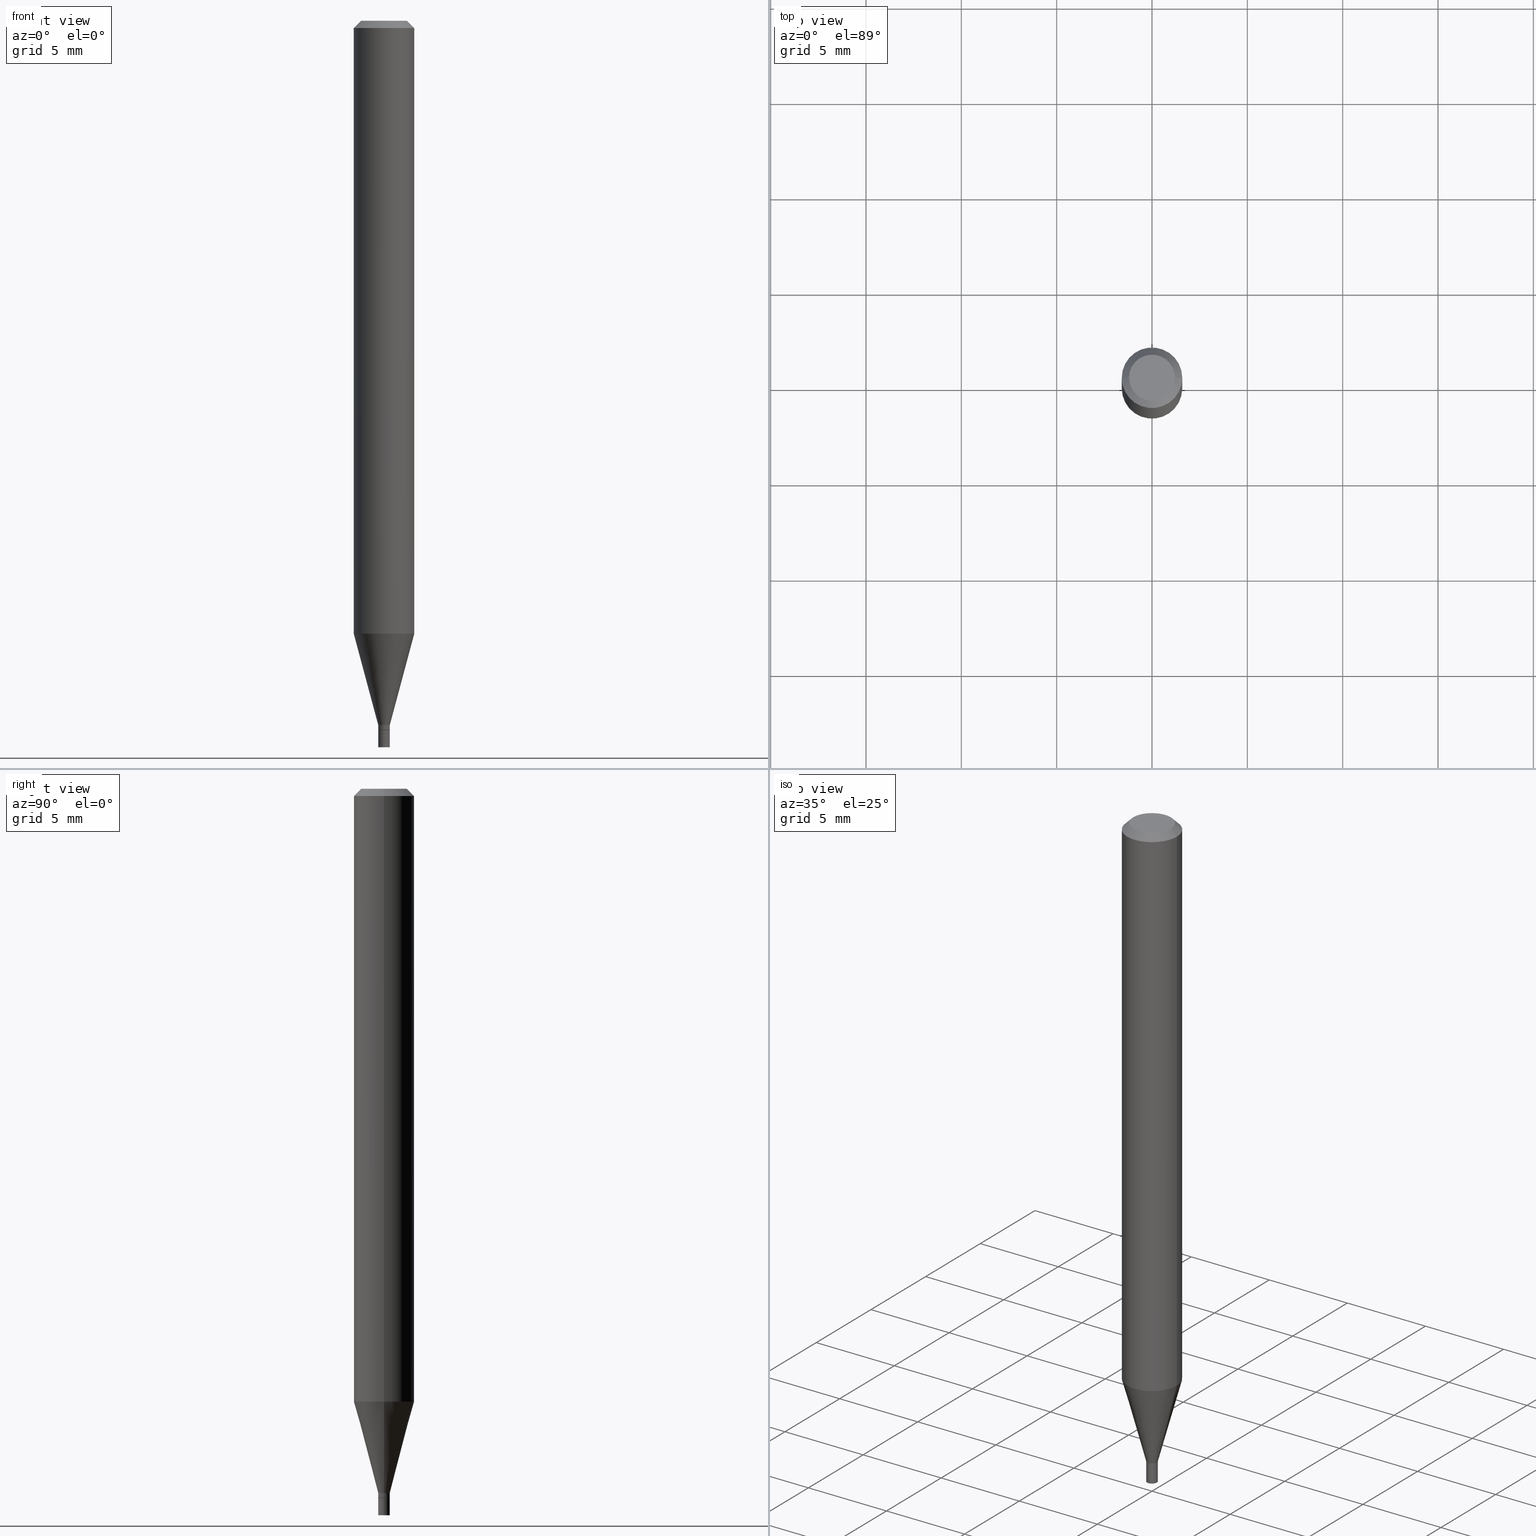
[diagram: canonical four-view strip — front | top / right | iso, engineering-drawing reading convention]
A machine part, canonical four-view strip (front | top / right | iso — engineering-drawing reading convention). The complete STEP part file that produces these views, byte-faithful:
ISO-10303-21;
HEADER;
FILE_DESCRIPTION (( 'STEP AP203' ),
    '1' );
FILE_NAME ('02257.STEP',
    '2024-03-18T19:57:47',
    ( '' ),
    ( '' ),
    'SwSTEP 2.0',
    'SolidWorks 2023',
    '' );
FILE_SCHEMA (( 'CONFIG_CONTROL_DESIGN' ));
ENDSEC;

DATA;
#1 = EDGE_CURVE ( 'NONE', #307, #278, #97, .T. ) ;
#2 = CALENDAR_DATE ( 2024, 18, 3 ) ;
#3 = VERTEX_POINT ( 'NONE', #265 ) ;
#4 = CARTESIAN_POINT ( 'NONE',  ( -0.01199999999999992219, -4.482919457413706092E-15, -1.454000000000000181 ) ) ;
#5 = APPROVAL_DATE_TIME ( #335, #262 ) ;
#6 = ORIENTED_EDGE ( 'NONE', *, *, #279, .F. ) ;
#7 = CARTESIAN_POINT ( 'NONE',  ( 2.080290297812910479E-44, -2.970103211220577886E-30, -8.506713692488703374E-16 ) ) ;
#8 = DIRECTION ( 'NONE',  ( -2.445468806185136597E-29, 3.491481338843145583E-15, 1.000000000000000000 ) ) ;
#9 = AXIS2_PLACEMENT_3D ( 'NONE', #126, #102, #194 ) ;
#10 = AXIS2_PLACEMENT_3D ( 'NONE', #439, #182, #48 ) ;
#11 = ORIENTED_EDGE ( 'NONE', *, *, #47, .T. ) ;
#12 = LOCAL_TIME ( 15, 57, 47.00000000000000000, #213 ) ;
#13 = COORDINATED_UNIVERSAL_TIME_OFFSET ( 5, 0, .BEHIND. ) ;
#14 = DATE_AND_TIME ( #257, #99 ) ;
#15 = ORIENTED_EDGE ( 'NONE', *, *, #47, .F. ) ;
#16 = VERTEX_POINT ( 'NONE', #283 ) ;
#17 = DIRECTION ( 'NONE',  ( -2.445468806185136597E-29, 3.491481338843145583E-15, 1.000000000000000000 ) ) ;
#18 = ORIENTED_EDGE ( 'NONE', *, *, #165, .T. ) ;
#19 = DIRECTION ( 'NONE',  ( 1.000000000000000000, -6.982962677686266711E-15, 4.876176775795936353E-29 ) ) ;
#20 = CIRCLE ( 'NONE', #466, 0.04749999999999999362 ) ;
#21 = CIRCLE ( 'NONE', #366, 0.06250000000000000000 ) ;
#22 = CC_DESIGN_PERSON_AND_ORGANIZATION_ASSIGNMENT ( #76, #327, ( #134 ) ) ;
#23 = DIRECTION ( 'NONE',  ( 1.000000000000000000, -6.982962677686267499E-15, 4.852736867747366768E-29 ) ) ;
#24 = CARTESIAN_POINT ( 'NONE',  ( 0.01200000000000000025, -8.379555213223520348E-17, 5.851412130955122461E-31 ) ) ;
#25 = DIRECTION ( 'NONE',  ( -2.445468806185136597E-29, 3.491481338843145583E-15, 1.000000000000000000 ) ) ;
#26 = ORIENTED_EDGE ( 'NONE', *, *, #402, .F. ) ;
#27 = ORIENTED_EDGE ( 'NONE', *, *, #114, .T. ) ;
#28 = DIRECTION ( 'NONE',  ( -2.445468806185136597E-29, 3.491481338843145583E-15, 1.000000000000000000 ) ) ;
#29 = EDGE_LOOP ( 'NONE', ( #343, #449, #161, #405 ) ) ;
#30 = APPROVAL ( #462, 'UNSPECIFIED' ) ;
#31 = FACE_OUTER_BOUND ( 'NONE', #277, .T. ) ;
#32 = AXIS2_PLACEMENT_3D ( 'NONE', #66, #204, #117 ) ;
#33 = CARTESIAN_POINT ( 'NONE',  ( 3.580166332255040005E-29, -5.111528680066365187E-15, -1.463999999999999968 ) ) ;
#34 = CIRCLE ( 'NONE', #64, 0.01149999999999999981 ) ;
#35 = ADVANCED_FACE ( 'NONE', ( #424 ), #243, .T. ) ;
#36 = LOCAL_TIME ( 15, 57, 47.00000000000000000, #254 ) ;
#37 = LINE ( 'NONE', #426, #168 ) ;
#38 = PERSON_AND_ORGANIZATION ( #308, #251 ) ;
#39 = CYLINDRICAL_SURFACE ( 'NONE', #322, 0.01200000000000000025 ) ;
#40 = CIRCLE ( 'NONE', #123, 0.01199999999999992219 ) ;
#41 = ADVANCED_FACE ( 'NONE', ( #31 ), #389, .T. ) ;
#42 = CALENDAR_DATE ( 2024, 18, 3 ) ;
#43 = DIRECTION ( 'NONE',  ( 0.7071067811865642261, -2.468850131082431399E-15, 0.7071067811865309194 ) ) ;
#44 = CARTESIAN_POINT ( 'NONE',  ( -0.01149999999999999981, -5.027167038279843575E-15, -1.463999999999999968 ) ) ;
#45 = ORIENTED_EDGE ( 'NONE', *, *, #1, .F. ) ;
#46 = ORIENTED_EDGE ( 'NONE', *, *, #371, .T. ) ;
#47 = EDGE_CURVE ( 'NONE', #278, #307, #174, .T. ) ;
#48 = DIRECTION ( 'NONE',  ( 1.000000000000000000, -6.982962677686296687E-15, 0.000000000000000000 ) ) ;
#49 = AXIS2_PLACEMENT_3D ( 'NONE', #225, #337, #157 ) ;
#50 = AXIS2_PLACEMENT_3D ( 'NONE', #345, #460, #143 ) ;
#51 = APPROVAL_PERSON_ORGANIZATION ( #398, #262, #217 ) ;
#52 = CARTESIAN_POINT ( 'NONE',  ( -0.01200000000000000025, 8.526512829121202408E-17, -5.902722108305887001E-31 ) ) ;
#53 = EDGE_LOOP ( 'NONE', ( #11, #339, #192, #160 ) ) ;
#54 = ORIENTED_EDGE ( 'NONE', *, *, #81, .F. ) ;
#55 = FACE_OUTER_BOUND ( 'NONE', #341, .T. ) ;
#56 = EDGE_LOOP ( 'NONE', ( #190, #183, #197, #59 ) ) ;
#57 = DIRECTION ( 'NONE',  ( -0.2588190451025211281, 5.211531920934547886E-15, 0.9659258262890679791 ) ) ;
#58 = CIRCLE ( 'NONE', #459, 0.04749999999999999362 ) ;
#59 = ORIENTED_EDGE ( 'NONE', *, *, #165, .F. ) ;
#60 = LINE ( 'NONE', #304, #431 ) ;
#61 = VERTEX_POINT ( 'NONE', #112 ) ;
#62 = ADVANCED_FACE ( 'NONE', ( #397 ), #73, .F. ) ;
#63 = CIRCLE ( 'NONE', #9, 0.01199999999999992219 ) ;
#64 = AXIS2_PLACEMENT_3D ( 'NONE', #33, #171, #314 ) ;
#65 = LENGTH_MEASURE_WITH_UNIT ( LENGTH_MEASURE( 0.02539999999999999897 ), #141 );
#66 = CARTESIAN_POINT ( 'NONE',  ( 3.576687321579069994E-29, -5.368277968210015545E-15, -1.500000000000000222 ) ) ;
#67 = CARTESIAN_POINT ( 'NONE',  ( 3.580166332255040005E-29, -5.111528680066365187E-15, -1.463999999999999968 ) ) ;
#68 = ADVANCED_FACE ( 'NONE', ( #162 ), #348, .F. ) ;
#69 = DIRECTION ( 'NONE',  ( 1.000000000000000000, -6.982962677686296687E-15, 0.000000000000000000 ) ) ;
#70 = LINE ( 'NONE', #391, #294 ) ;
#71 = VECTOR ( 'NONE', #191, 39.37007874015748143 ) ;
#72 = DIRECTION ( 'NONE',  ( 1.000000000000000000, -6.982962677686266711E-15, 4.876176775795935232E-29 ) ) ;
#73 = PLANE ( 'NONE',  #350 ) ;
#74 = PERSON_AND_ORGANIZATION ( #308, #251 ) ;
#75 = EDGE_CURVE ( 'NONE', #16, #3, #363, .T. ) ;
#76 = PERSON_AND_ORGANIZATION ( #308, #251 ) ;
#77 = AXIS2_PLACEMENT_3D ( 'NONE', #288, #113, #313 ) ;
#78 = ORIENTED_EDGE ( 'NONE', *, *, #150, .F. ) ;
#79 = DIRECTION ( 'NONE',  ( 2.438088387897960049E-29, -3.491481338843145188E-15, -1.000000000000000000 ) ) ;
#80 = PERSON_AND_ORGANIZATION_ROLE ( 'creator' ) ;
#81 = EDGE_CURVE ( 'NONE', #372, #186, #20, .T. ) ;
#82 = CARTESIAN_POINT ( 'NONE',  ( 0.000000000000000000, 0.000000000000000000, 0.000000000000000000 ) ) ;
#83 = CARTESIAN_POINT ( 'NONE',  ( 0.01199999999999992219, -5.160409418810168864E-15, -1.454000000000000181 ) ) ;
#84 = ORIENTED_EDGE ( 'NONE', *, *, #198, .F. ) ;
#85 = CIRCLE ( 'NONE', #159, 0.06250000000000000000 ) ;
#86 = ORIENTED_EDGE ( 'NONE', *, *, #386, .T. ) ;
#87 = EDGE_LOOP ( 'NONE', ( #121, #275, #26, #269 ) ) ;
#88 = FACE_OUTER_BOUND ( 'NONE', #259, .T. ) ;
#89 = ORIENTED_EDGE ( 'NONE', *, *, #248, .F. ) ;
#90 = EDGE_CURVE ( 'NONE', #94, #167, #63, .T. ) ;
#91 = FACE_OUTER_BOUND ( 'NONE', #421, .T. ) ;
#92 = VERTEX_POINT ( 'NONE', #44 ) ;
#93 = APPLICATION_CONTEXT ( 'configuration controlled 3d designs of mechanical parts and assemblies' ) ;
#94 = VERTEX_POINT ( 'NONE', #4 ) ;
#95 = ORIENTED_EDGE ( 'NONE', *, *, #177, .T. ) ;
#96 = CARTESIAN_POINT ( 'NONE',  ( -0.01199999999999992219, -4.991348738386722228E-15, -1.454000000000000181 ) ) ;
#97 = CIRCLE ( 'NONE', #49, 0.01200000000000000025 ) ;
#98 = VECTOR ( 'NONE', #316, 39.37007874015748143 ) ;
#99 = LOCAL_TIME ( 15, 57, 47.00000000000000000, #297 ) ;
#100 = FACE_OUTER_BOUND ( 'NONE', #87, .T. ) ;
#101 = VERTEX_POINT ( 'NONE', #210 ) ;
#102 = DIRECTION ( 'NONE',  ( -2.445468806185136597E-29, 3.491481338843145583E-15, 1.000000000000000000 ) ) ;
#103 = CARTESIAN_POINT ( 'NONE',  ( 2.080290297812910479E-44, -2.970103211220577886E-30, -8.506713692488703374E-16 ) ) ;
#104 = ORIENTED_EDGE ( 'NONE', *, *, #296, .F. ) ;
#105 = DIRECTION ( 'NONE',  ( 1.000000000000000000, -6.982962677686291165E-15, 0.000000000000000000 ) ) ;
#106 = AXIS2_PLACEMENT_3D ( 'NONE', #388, #429, #207 ) ;
#107 = DIRECTION ( 'NONE',  ( 1.000000000000000000, -6.982962677686266711E-15, 4.876176775795936353E-29 ) ) ;
#108 = EDGE_CURVE ( 'NONE', #92, #61, #321, .T. ) ;
#109 = DIRECTION ( 'NONE',  ( -2.445468806185136877E-29, 3.491481338843145188E-15, 1.000000000000000000 ) ) ;
#110 = DATE_AND_TIME ( #282, #12 ) ;
#111 = CONICAL_SURFACE ( 'NONE', #140, 0.01199999999999992219, 0.2617993877991498519 ) ;
#112 = CARTESIAN_POINT ( 'NONE',  ( 0.01149999999999999981, -5.191832750859757506E-15, -1.463999999999999968 ) ) ;
#113 = DIRECTION ( 'NONE',  ( -2.445468806185136597E-29, 3.491481338843145583E-15, 1.000000000000000000 ) ) ;
#114 = EDGE_CURVE ( 'NONE', #167, #231, #359, .T. ) ;
#115 = APPROVAL_ROLE ( '' ) ;
#116 = CLOSED_SHELL ( 'NONE', ( #35, #205, #226, #379, #284, #146, #244, #356, #128, #396, #461, #292 ) ) ;
#117 = DIRECTION ( 'NONE',  ( 1.000000000000000000, -6.982962677686265922E-15, 4.876176775795935793E-29 ) ) ;
#118 = AXIS2_PLACEMENT_3D ( 'NONE', #416, #373, #199 ) ;
#119 = CC_DESIGN_PERSON_AND_ORGANIZATION_ASSIGNMENT ( #354, #222, ( #427 ) ) ;
#120 = APPROVAL_DATE_TIME ( #332, #414 ) ;
#121 = ORIENTED_EDGE ( 'NONE', *, *, #417, .T. ) ;
#122 = DESIGN_CONTEXT ( 'detailed design', #93, 'design' ) ;
#123 = AXIS2_PLACEMENT_3D ( 'NONE', #406, #230, #69 ) ;
#124 = VECTOR ( 'NONE', #334, 39.37007874015748143 ) ;
#125 = CC_DESIGN_SECURITY_CLASSIFICATION ( #134, ( #403 ) ) ;
#126 = CARTESIAN_POINT ( 'NONE',  ( 3.555711644193189020E-29, -5.076613866677933538E-15, -1.454000000000000181 ) ) ;
#127 = DIRECTION ( 'NONE',  ( -0.7071067811865676678, 2.468850131082468081E-15, -0.7071067811865273667 ) ) ;
#128 = ADVANCED_FACE ( 'NONE', ( #401 ), #326, .F. ) ;
#129 = LINE ( 'NONE', #24, #413 ) ;
#130 = LINE ( 'NONE', #96, #281 ) ;
#131 = MANIFOLD_SOLID_BREP ( 'Body-Move/Copy2[1]', #158 ) ;
#132 = EDGE_LOOP ( 'NONE', ( #15, #45 ) ) ;
#133 = EDGE_CURVE ( 'NONE', #61, #445, #37, .T. ) ;
#134 = SECURITY_CLASSIFICATION ( '', '', #179 ) ;
#135 = CARTESIAN_POINT ( 'NONE',  ( 3.580166332255040005E-29, -5.111528680066365187E-15, -1.463999999999999968 ) ) ;
#136 = LINE ( 'NONE', #246, #219 ) ;
#137 = DIRECTION ( 'NONE',  ( 1.000000000000000000, -6.982962677686265922E-15, 4.876176775795935793E-29 ) ) ;
#138 = DIRECTION ( 'NONE',  ( -0.7071067811865642261, 7.493145998870414114E-15, 0.7071067811865309194 ) ) ;
#139 = EDGE_CURVE ( 'NONE', #278, #200, #129, .T. ) ;
#140 = AXIS2_PLACEMENT_3D ( 'NONE', #195, #25, #448 ) ;
#141 =( LENGTH_UNIT ( ) NAMED_UNIT ( * ) SI_UNIT ( $, .METRE. ) );
#142 =( CONVERSION_BASED_UNIT ( 'INCH', #65 ) LENGTH_UNIT ( ) NAMED_UNIT ( #286 ) );
#143 = DIRECTION ( 'NONE',  ( -1.000000000000000000, 6.982962677686266711E-15, 0.000000000000000000 ) ) ;
#144 = UNCERTAINTY_MEASURE_WITH_UNIT (LENGTH_MEASURE( 1.000000000000000082E-05 ), #142, 'distance_accuracy_value', 'NONE');
#145 = DIRECTION ( 'NONE',  ( 1.000000000000000000, -6.982962677686296687E-15, 0.000000000000000000 ) ) ;
#146 = ADVANCED_FACE ( 'NONE', ( #88 ), #400, .T. ) ;
#147 = DIRECTION ( 'NONE',  ( -2.438088387897960049E-29, 3.491481338843145188E-15, 1.000000000000000000 ) ) ;
#148 = FACE_OUTER_BOUND ( 'NONE', #376, .T. ) ;
#149 = DIRECTION ( 'NONE',  ( -2.445468806185136597E-29, 3.491481338843145583E-15, 1.000000000000000000 ) ) ;
#150 = EDGE_CURVE ( 'NONE', #372, #101, #156, .T. ) ;
#151 = APPROVAL_STATUS ( 'not_yet_approved' ) ;
#152 = AXIS2_PLACEMENT_3D ( 'NONE', #293, #79, #360 ) ;
#153 = CONICAL_SURFACE ( 'NONE', #208, 0.01149999999999999981, 0.7853981633974718157 ) ;
#154 = DIRECTION ( 'NONE',  ( 1.000000000000000000, -6.982962677686296687E-15, 0.000000000000000000 ) ) ;
#155 = DATE_TIME_ROLE ( 'creation_date' ) ;
#156 = LINE ( 'NONE', #263, #256 ) ;
#157 = DIRECTION ( 'NONE',  ( 1.000000000000000000, -6.982962677686251722E-15, 0.000000000000000000 ) ) ;
#158 = CLOSED_SHELL ( 'NONE', ( #234, #68, #41, #62 ) ) ;
#159 = AXIS2_PLACEMENT_3D ( 'NONE', #380, #169, #311 ) ;
#160 = ORIENTED_EDGE ( 'NONE', *, *, #139, .F. ) ;
#161 = ORIENTED_EDGE ( 'NONE', *, *, #446, .T. ) ;
#162 = FACE_OUTER_BOUND ( 'NONE', #132, .T. ) ;
#163 = ORIENTED_EDGE ( 'NONE', *, *, #75, .T. ) ;
#164 = ORIENTED_EDGE ( 'NONE', *, *, #114, .F. ) ;
#165 = EDGE_CURVE ( 'NONE', #328, #445, #418, .T. ) ;
#166 = CARTESIAN_POINT ( 'NONE',  ( -0.01200000000000000025, -5.089110215874330372E-15, -1.500000000000000222 ) ) ;
#167 = VERTEX_POINT ( 'NONE', #83 ) ;
#168 = VECTOR ( 'NONE', #43, 39.37007874015748143 ) ;
#169 = DIRECTION ( 'NONE',  ( -2.445468806185136597E-29, 3.491481338843145583E-15, 1.000000000000000000 ) ) ;
#170 = CC_DESIGN_PERSON_AND_ORGANIZATION_ASSIGNMENT ( #358, #80, ( #403 ) ) ;
#171 = DIRECTION ( 'NONE',  ( -2.445468806185136597E-29, 3.491481338843145583E-15, 1.000000000000000000 ) ) ;
#172 = DIRECTION ( 'NONE',  ( -2.445468806185136597E-29, 3.491481338843145583E-15, 1.000000000000000000 ) ) ;
#173 = CARTESIAN_POINT ( 'NONE',  ( 3.580166332255040005E-29, -5.111528680066365187E-15, -1.463999999999999968 ) ) ;
#174 = CIRCLE ( 'NONE', #435, 0.01200000000000000025 ) ;
#175 = AXIS2_PLACEMENT_3D ( 'NONE', #178, #319, #145 ) ;
#176 = CARTESIAN_POINT ( 'NONE',  ( 0.06250000000000000000, -4.364351673553916694E-16, 3.047610484872459871E-30 ) ) ;
#177 = EDGE_CURVE ( 'NONE', #445, #167, #365, .T. ) ;
#178 = CARTESIAN_POINT ( 'NONE',  ( 3.578943597851947764E-29, -5.109782939396944472E-15, -1.463500000000000023 ) ) ;
#179 = SECURITY_CLASSIFICATION_LEVEL ( 'unclassified' ) ;
#180 = EDGE_CURVE ( 'NONE', #3, #101, #237, .T. ) ;
#181 = DIRECTION ( 'NONE',  ( -2.445468806185136877E-29, 3.491481338843145188E-15, 1.000000000000000000 ) ) ;
#182 = DIRECTION ( 'NONE',  ( -2.445468806185136597E-29, 3.491481338843145583E-15, 1.000000000000000000 ) ) ;
#183 = ORIENTED_EDGE ( 'NONE', *, *, #108, .T. ) ;
#184 = AXIS2_PLACEMENT_3D ( 'NONE', #236, #28, #378 ) ;
#185 = PERSON_AND_ORGANIZATION ( #308, #251 ) ;
#186 = VERTEX_POINT ( 'NONE', #443 ) ;
#187 = CARTESIAN_POINT ( 'NONE',  ( 0.01199999999999992219, -8.379555213223466114E-17, 5.851412130955085677E-31 ) ) ;
#188 = ORIENTED_EDGE ( 'NONE', *, *, #402, .T. ) ;
#189 = CC_DESIGN_PERSON_AND_ORGANIZATION_ASSIGNMENT ( #456, #392, ( #224 ) ) ;
#190 = ORIENTED_EDGE ( 'NONE', *, *, #211, .F. ) ;
#191 = DIRECTION ( 'NONE',  ( -2.445468806185136877E-29, 3.491481338843145188E-15, 1.000000000000000000 ) ) ;
#192 = ORIENTED_EDGE ( 'NONE', *, *, #457, .F. ) ;
#193 = CYLINDRICAL_SURFACE ( 'NONE', #451, 0.01199999999999992219 ) ;
#194 = DIRECTION ( 'NONE',  ( 1.000000000000000000, -6.982962677686296687E-15, 0.000000000000000000 ) ) ;
#195 = CARTESIAN_POINT ( 'NONE',  ( 3.555711644193189020E-29, -5.076613866677933538E-15, -1.454000000000000181 ) ) ;
#196 = CIRCLE ( 'NONE', #175, 0.01199999999999992219 ) ;
#197 = ORIENTED_EDGE ( 'NONE', *, *, #133, .T. ) ;
#198 = EDGE_CURVE ( 'NONE', #307, #201, #369, .T. ) ;
#199 = DIRECTION ( 'NONE',  ( 1.000000000000000000, -6.982962677686262766E-15, 0.000000000000000000 ) ) ;
#200 = VERTEX_POINT ( 'NONE', #454 ) ;
#201 = VERTEX_POINT ( 'NONE', #419 ) ;
#202 = ORIENTED_EDGE ( 'NONE', *, *, #386, .F. ) ;
#203 = VECTOR ( 'NONE', #181, 39.37007874015748143 ) ;
#204 = DIRECTION ( 'NONE',  ( -2.438088387897960049E-29, 3.491481338843145188E-15, 1.000000000000000000 ) ) ;
#205 = ADVANCED_FACE ( 'NONE', ( #100 ), #383, .T. ) ;
#206 = DIRECTION ( 'NONE',  ( -2.445468806185136597E-29, 3.491481338843145583E-15, 1.000000000000000000 ) ) ;
#207 = DIRECTION ( 'NONE',  ( -1.000000000000000000, 6.982962677686266711E-15, 0.000000000000000000 ) ) ;
#208 = AXIS2_PLACEMENT_3D ( 'NONE', #173, #280, #105 ) ;
#209 = CARTESIAN_POINT ( 'NONE',  ( 0.000000000000000000, 0.000000000000000000, 0.000000000000000000 ) ) ;
#210 = CARTESIAN_POINT ( 'NONE',  ( 0.06250000000000000000, -4.888073874380388472E-16, -0.01499999999999999944 ) ) ;
#211 = EDGE_CURVE ( 'NONE', #92, #328, #136, .T. ) ;
#212 = DIRECTION ( 'NONE',  ( 1.000000000000000000, -6.982962677686251722E-15, 0.000000000000000000 ) ) ;
#213 = COORDINATED_UNIVERSAL_TIME_OFFSET ( 5, 0, .BEHIND. ) ;
#214 = DIRECTION ( 'NONE',  ( -2.445468806185136597E-29, 3.491481338843145583E-15, 1.000000000000000000 ) ) ;
#215 = CARTESIAN_POINT ( 'NONE',  ( 8.379555213227099805E-17, 0.01199999999999488802, -1.463999999999999968 ) ) ;
#216 = APPLICATION_CONTEXT ( 'configuration controlled 3d designs of mechanical parts and assemblies' ) ;
#217 = APPROVAL_ROLE ( '' ) ;
#218 = DIRECTION ( 'NONE',  ( 1.000000000000000000, -6.982962677686266711E-15, 4.876176775795935793E-29 ) ) ;
#219 = VECTOR ( 'NONE', #138, 39.37007874015748143 ) ;
#220 = COORDINATED_UNIVERSAL_TIME_OFFSET ( 5, 0, .BEHIND. ) ;
#221 = DIRECTION ( 'NONE',  ( -2.445468806185136877E-29, 3.491481338843145188E-15, 1.000000000000000000 ) ) ;
#222 = PERSON_AND_ORGANIZATION_ROLE ( 'creator' ) ;
#223 = DIRECTION ( 'NONE',  ( -2.445468806185136597E-29, 3.491481338843145583E-15, 1.000000000000000000 ) ) ;
#224 = PRODUCT ( '02257', '02257', '', ( #245 ) ) ;
#225 = CARTESIAN_POINT ( 'NONE',  ( 3.668203209277704895E-29, -5.237222008264718177E-15, -1.500000000000000222 ) ) ;
#226 = ADVANCED_FACE ( 'NONE', ( #349 ), #357, .T. ) ;
#227 = ORIENTED_EDGE ( 'NONE', *, *, #248, .T. ) ;
#228 = CARTESIAN_POINT ( 'NONE',  ( 3.578943597851947764E-29, -5.109782939396944472E-15, -1.463500000000000023 ) ) ;
#229 = DIRECTION ( 'NONE',  ( -2.445468806185136597E-29, 3.491481338843145583E-15, 1.000000000000000000 ) ) ;
#230 = DIRECTION ( 'NONE',  ( -2.445468806185136597E-29, 3.491481338843145583E-15, 1.000000000000000000 ) ) ;
#231 = VERTEX_POINT ( 'NONE', #324 ) ;
#232 = CYLINDRICAL_SURFACE ( 'NONE', #184, 0.06250000000000000000 ) ;
#233 = ORIENTED_EDGE ( 'NONE', *, *, #371, .F. ) ;
#234 = ADVANCED_FACE ( 'NONE', ( #409 ), #39, .T. ) ;
#235 = AXIS2_PLACEMENT_3D ( 'NONE', #430, #346, #107 ) ;
#236 = CARTESIAN_POINT ( 'NONE',  ( 0.000000000000000000, 0.000000000000000000, 0.000000000000000000 ) ) ;
#237 = CIRCLE ( 'NONE', #436, 0.06250000000000000000 ) ;
#238 = APPROVAL_PERSON_ORGANIZATION ( #74, #414, #115 ) ;
#239 = EDGE_LOOP ( 'NONE', ( #54, #370, #46, #374 ) ) ;
#240 = CYLINDRICAL_SURFACE ( 'NONE', #385, 0.06250000000000000000 ) ;
#241 = ORIENTED_EDGE ( 'NONE', *, *, #108, .F. ) ;
#242 = FACE_OUTER_BOUND ( 'NONE', #310, .T. ) ;
#243 = CYLINDRICAL_SURFACE ( 'NONE', #235, 0.01199999999999992219 ) ;
#244 = ADVANCED_FACE ( 'NONE', ( #442 ), #232, .T. ) ;
#245 = MECHANICAL_CONTEXT ( 'NONE', #216, 'mechanical' ) ;
#246 = CARTESIAN_POINT ( 'NONE',  ( -0.01149999999999999981, -5.029816265453953987E-15, -1.463999999999999968 ) ) ;
#247 = CARTESIAN_POINT ( 'NONE',  ( 0.01199999999999992219, -5.193578491529179010E-15, -1.463500000000000023 ) ) ;
#248 = EDGE_CURVE ( 'NONE', #186, #372, #58, .T. ) ;
#249 = DIRECTION ( 'NONE',  ( -2.445468806185136597E-29, 3.491481338843145583E-15, 1.000000000000000000 ) ) ;
#250 = CONICAL_SURFACE ( 'NONE', #106, 0.06250000000000000000, 0.7853981633974768117 ) ;
#251 = ORGANIZATION ( 'UNSPECIFIED', 'UNSPECIFIED', '' ) ;
#252 = DIRECTION ( 'NONE',  ( 1.000000000000000000, 0.000000000000000000, 0.000000000000000000 ) ) ;
#253 = DIRECTION ( 'NONE',  ( 1.000000000000000000, -6.982962677686291165E-15, 0.000000000000000000 ) ) ;
#254 = COORDINATED_UNIVERSAL_TIME_OFFSET ( 5, 0, .BEHIND. ) ;
#255 = CARTESIAN_POINT ( 'NONE',  ( -0.06250000000000000000, 4.440892098500626162E-16, -3.074334431409316114E-30 ) ) ;
#256 = VECTOR ( 'NONE', #330, 39.37007874015748143 ) ;
#257 = CALENDAR_DATE ( 2024, 18, 3 ) ;
#258 = CC_DESIGN_APPROVAL ( #30, ( #427 ) ) ;
#259 = EDGE_LOOP ( 'NONE', ( #104, #420, #27, #367 ) ) ;
#260 = DIRECTION ( 'NONE',  ( 1.000000000000000000, -6.982962677686267499E-15, 4.852736867747366768E-29 ) ) ;
#261 = ORIENTED_EDGE ( 'NONE', *, *, #177, .F. ) ;
#262 = APPROVAL ( #433, 'UNSPECIFIED' ) ;
#263 = CARTESIAN_POINT ( 'NONE',  ( 0.06250000000000000000, -4.811533449433679005E-16, -0.01499999999999999944 ) ) ;
#264 = AXIS2_PLACEMENT_3D ( 'NONE', #209, #353, #252 ) ;
#265 = CARTESIAN_POINT ( 'NONE',  ( -0.06250000000000000000, -1.791386593336637406E-15, -0.01499999999999999944 ) ) ;
#266 = ORIENTED_EDGE ( 'NONE', *, *, #268, .T. ) ;
#267 = CARTESIAN_POINT ( 'NONE',  ( 0.01200000000000000025, -5.321017560396953503E-15, -1.500000000000000222 ) ) ;
#268 = EDGE_CURVE ( 'NONE', #186, #3, #60, .T. ) ;
#269 = ORIENTED_EDGE ( 'NONE', *, *, #133, .F. ) ;
#270 = EDGE_LOOP ( 'NONE', ( #188, #333, #202, #261 ) ) ;
#271 = CARTESIAN_POINT ( 'NONE',  ( 0.000000000000000000, 0.000000000000000000, 0.000000000000000000 ) ) ;
#272 = ORIENTED_EDGE ( 'NONE', *, *, #457, .T. ) ;
#273 = AXIS2_PLACEMENT_3D ( 'NONE', #399, #149, #253 ) ;
#274 = AXIS2_PLACEMENT_3D ( 'NONE', #458, #290, #382 ) ;
#275 = ORIENTED_EDGE ( 'NONE', *, *, #211, .T. ) ;
#276 = DIRECTION ( 'NONE',  ( -2.445468806185136597E-29, 3.491481338843145583E-15, 1.000000000000000000 ) ) ;
#277 = EDGE_LOOP ( 'NONE', ( #84, #342, #455, #444 ) ) ;
#278 = VERTEX_POINT ( 'NONE', #267 ) ;
#279 = EDGE_CURVE ( 'NONE', #231, #16, #315, .T. ) ;
#280 = DIRECTION ( 'NONE',  ( -2.445468806185136597E-29, 3.491481338843145583E-15, 1.000000000000000000 ) ) ;
#281 = VECTOR ( 'NONE', #57, 39.37007874015748854 ) ;
#282 = CALENDAR_DATE ( 2024, 18, 3 ) ;
#283 = CARTESIAN_POINT ( 'NONE',  ( -0.06250000000000000000, -3.974490176440689955E-15, -1.265531434217771922 ) ) ;
#284 = ADVANCED_FACE ( 'NONE', ( #55 ), #111, .T. ) ;
#285 =( NAMED_UNIT ( * ) PLANE_ANGLE_UNIT ( ) SI_UNIT ( $, .RADIAN. ) );
#286 = DIMENSIONAL_EXPONENTS ( 1.000000000000000000, 0.000000000000000000, 0.000000000000000000, 0.000000000000000000, 0.000000000000000000, 0.000000000000000000, 0.000000000000000000 ) ;
#287 = PLANE ( 'NONE',  #289 ) ;
#288 = CARTESIAN_POINT ( 'NONE',  ( 3.580166332255040005E-29, -5.111528680066365187E-15, -1.463999999999999968 ) ) ;
#289 = AXIS2_PLACEMENT_3D ( 'NONE', #67, #147, #137 ) ;
#290 = DIRECTION ( 'NONE',  ( -2.445468806185136597E-29, 3.491481338843145583E-15, 1.000000000000000000 ) ) ;
#291 = CARTESIAN_POINT ( 'NONE',  ( 0.04749999999999999362, -4.035134999187593414E-16, -8.506713692488677736E-16 ) ) ;
#292 = ADVANCED_FACE ( 'NONE', ( #91 ), #193, .T. ) ;
#293 = CARTESIAN_POINT ( 'NONE',  ( 3.316907271900976096E-16, 0.04749999999999999362, -5.911810482194846144E-16 ) ) ;
#294 = VECTOR ( 'NONE', #109, 39.37007874015748143 ) ;
#295 = DIRECTION ( 'NONE',  ( -2.445468806185136597E-29, 3.491481338843145583E-15, 1.000000000000000000 ) ) ;
#296 = EDGE_CURVE ( 'NONE', #94, #16, #130, .T. ) ;
#297 = COORDINATED_UNIVERSAL_TIME_OFFSET ( 5, 0, .BEHIND. ) ;
#298 = EDGE_LOOP ( 'NONE', ( #78, #89, #266, #306 ) ) ;
#299 = ORIENTED_EDGE ( 'NONE', *, *, #81, .T. ) ;
#300 = DIRECTION ( 'NONE',  ( 1.000000000000000000, -6.982962677686266711E-15, 0.000000000000000000 ) ) ;
#301 = AXIS2_PLACEMENT_3D ( 'NONE', #135, #276, #381 ) ;
#302 = PRODUCT_RELATED_PRODUCT_CATEGORY ( 'detail', '', ( #224 ) ) ;
#303 = APPROVAL_PERSON_ORGANIZATION ( #38, #30, #347 ) ;
#304 = CARTESIAN_POINT ( 'NONE',  ( -0.06250000000000000000, 3.840629472727444916E-16, -0.01499999999999999944 ) ) ;
#305 = ORIENTED_EDGE ( 'NONE', *, *, #296, .T. ) ;
#306 = ORIENTED_EDGE ( 'NONE', *, *, #180, .T. ) ;
#307 = VERTEX_POINT ( 'NONE', #166 ) ;
#308 = PERSON ( 'UNSPECIFIED', 'UNSPECIFIED', 'UNSPECIFIED', ('UNSPECIFIED'), ('UNSPECIFIED'), ('UNSPECIFIED') ) ;
#309 = VECTOR ( 'NONE', #318, 39.37007874015748854 ) ;
#310 = EDGE_LOOP ( 'NONE', ( #408, #241 ) ) ;
#311 = DIRECTION ( 'NONE',  ( 1.000000000000000000, -6.982962677686262766E-15, 0.000000000000000000 ) ) ;
#312 = EDGE_CURVE ( 'NONE', #16, #231, #85, .T. ) ;
#313 = DIRECTION ( 'NONE',  ( 1.000000000000000000, -6.982962677686251722E-15, 0.000000000000000000 ) ) ;
#314 = DIRECTION ( 'NONE',  ( 1.000000000000000000, -6.982962677686291165E-15, 0.000000000000000000 ) ) ;
#315 = CIRCLE ( 'NONE', #118, 0.06250000000000000000 ) ;
#316 = DIRECTION ( 'NONE',  ( -2.445468806185136877E-29, 3.491481338843145188E-15, 1.000000000000000000 ) ) ;
#317 = CARTESIAN_POINT ( 'NONE',  ( 0.000000000000000000, 0.000000000000000000, 0.000000000000000000 ) ) ;
#318 = DIRECTION ( 'NONE',  ( 0.2588190451025211281, 1.565188264969622954E-15, 0.9659258262890679791 ) ) ;
#319 = DIRECTION ( 'NONE',  ( -2.445468806185136597E-29, 3.491481338843145583E-15, 1.000000000000000000 ) ) ;
#320 = CARTESIAN_POINT ( 'NONE',  ( 0.01199999999999992219, -5.160409418810168864E-15, -1.454000000000000181 ) ) ;
#321 = CIRCLE ( 'NONE', #273, 0.01149999999999999981 ) ;
#322 = AXIS2_PLACEMENT_3D ( 'NONE', #82, #223, #453 ) ;
#323 = CC_DESIGN_DATE_AND_TIME_ASSIGNMENT ( #325, #410, ( #134 ) ) ;
#324 = CARTESIAN_POINT ( 'NONE',  ( 0.06250000000000000000, -4.855014553646144241E-15, -1.265531434217771922 ) ) ;
#325 = DATE_AND_TIME ( #42, #437 ) ;
#326 = PLANE ( 'NONE',  #152 ) ;
#327 = PERSON_AND_ORGANIZATION_ROLE ( 'classification_officer' ) ;
#328 = VERTEX_POINT ( 'NONE', #434 ) ;
#329 = EDGE_CURVE ( 'NONE', #201, #200, #377, .T. ) ;
#330 = DIRECTION ( 'NONE',  ( 0.7071067811865676678, -7.319954787623323887E-15, -0.7071067811865273667 ) ) ;
#331 =( GEOMETRIC_REPRESENTATION_CONTEXT ( 3 ) GLOBAL_UNCERTAINTY_ASSIGNED_CONTEXT ( ( #144 ) ) GLOBAL_UNIT_ASSIGNED_CONTEXT ( ( #142, #285, #425 ) ) REPRESENTATION_CONTEXT ( 'NONE', 'WORKASPACE' ) );
#332 = DATE_AND_TIME ( #2, #36 ) ;
#333 = ORIENTED_EDGE ( 'NONE', *, *, #441, .T. ) ;
#334 = DIRECTION ( 'NONE',  ( -2.445468806185136877E-29, 3.491481338843145188E-15, 1.000000000000000000 ) ) ;
#335 = DATE_AND_TIME ( #404, #432 ) ;
#336 = DIRECTION ( 'NONE',  ( -2.445468806185136597E-29, 3.491481338843145583E-15, 1.000000000000000000 ) ) ;
#337 = DIRECTION ( 'NONE',  ( -2.445468806185136597E-29, 3.491481338843145583E-15, 1.000000000000000000 ) ) ;
#338 = ADVANCED_BREP_SHAPE_REPRESENTATION ( '02257', ( #131, #438, #264 ), #331 ) ;
#339 = ORIENTED_EDGE ( 'NONE', *, *, #198, .T. ) ;
#340 = ORIENTED_EDGE ( 'NONE', *, *, #446, .F. ) ;
#341 = EDGE_LOOP ( 'NONE', ( #86, #305, #6, #164 ) ) ;
#342 = ORIENTED_EDGE ( 'NONE', *, *, #1, .T. ) ;
#343 = ORIENTED_EDGE ( 'NONE', *, *, #75, .F. ) ;
#344 = CC_DESIGN_PERSON_AND_ORGANIZATION_ASSIGNMENT ( #185, #361, ( #403 ) ) ;
#345 = CARTESIAN_POINT ( 'NONE',  ( 3.668203209277705088E-31, -5.237222008264718399E-17, -0.01499999999999999944 ) ) ;
#346 = DIRECTION ( 'NONE',  ( -2.445468806185136597E-29, 3.491481338843145583E-15, 1.000000000000000000 ) ) ;
#347 = APPROVAL_ROLE ( '' ) ;
#348 = PLANE ( 'NONE',  #32 ) ;
#349 = FACE_OUTER_BOUND ( 'NONE', #239, .T. ) ;
#350 = AXIS2_PLACEMENT_3D ( 'NONE', #215, #384, #355 ) ;
#351 = CIRCLE ( 'NONE', #274, 0.01200000000000000025 ) ;
#352 = CC_DESIGN_APPROVAL ( #262, ( #134 ) ) ;
#353 = DIRECTION ( 'NONE',  ( 0.000000000000000000, 0.000000000000000000, 1.000000000000000000 ) ) ;
#354 = PERSON_AND_ORGANIZATION ( #308, #251 ) ;
#355 = DIRECTION ( 'NONE',  ( -1.000000000000000000, 6.982962677686265922E-15, -4.876176775795935793E-29 ) ) ;
#356 = ADVANCED_FACE ( 'NONE', ( #390 ), #250, .T. ) ;
#357 = CONICAL_SURFACE ( 'NONE', #50, 0.06250000000000000000, 0.7853981633974768117 ) ;
#358 = PERSON_AND_ORGANIZATION ( #308, #251 ) ;
#359 = LINE ( 'NONE', #320, #309 ) ;
#360 = DIRECTION ( 'NONE',  ( -1.000000000000000000, 6.982962677686265922E-15, -4.876176775795935793E-29 ) ) ;
#361 = PERSON_AND_ORGANIZATION_ROLE ( 'design_supplier' ) ;
#362 = CC_DESIGN_DATE_AND_TIME_ASSIGNMENT ( #14, #155, ( #427 ) ) ;
#363 = LINE ( 'NONE', #255, #203 ) ;
#364 = EDGE_LOOP ( 'NONE', ( #227, #299 ) ) ;
#365 = LINE ( 'NONE', #187, #124 ) ;
#366 = AXIS2_PLACEMENT_3D ( 'NONE', #395, #214, #465 ) ;
#367 = ORIENTED_EDGE ( 'NONE', *, *, #312, .F. ) ;
#368 = ORIENTED_EDGE ( 'NONE', *, *, #441, .F. ) ;
#369 = LINE ( 'NONE', #52, #71 ) ;
#370 = ORIENTED_EDGE ( 'NONE', *, *, #150, .T. ) ;
#371 = EDGE_CURVE ( 'NONE', #101, #3, #21, .T. ) ;
#372 = VERTEX_POINT ( 'NONE', #291 ) ;
#373 = DIRECTION ( 'NONE',  ( -2.445468806185136597E-29, 3.491481338843145583E-15, 1.000000000000000000 ) ) ;
#374 = ORIENTED_EDGE ( 'NONE', *, *, #268, .F. ) ;
#375 = AXIS2_PLACEMENT_3D ( 'NONE', #317, #249, #72 ) ;
#376 = EDGE_LOOP ( 'NONE', ( #450, #163, #233, #340 ) ) ;
#377 = CIRCLE ( 'NONE', #77, 0.01200000000000000025 ) ;
#378 = DIRECTION ( 'NONE',  ( 1.000000000000000000, -6.982962677686266711E-15, 4.876176775795935793E-29 ) ) ;
#379 = ADVANCED_FACE ( 'NONE', ( #148 ), #240, .T. ) ;
#380 = CARTESIAN_POINT ( 'NONE',  ( 3.094817645626298552E-29, -4.418579386290752571E-15, -1.265531434217771922 ) ) ;
#381 = DIRECTION ( 'NONE',  ( 1.000000000000000000, -6.982962677686291165E-15, 0.000000000000000000 ) ) ;
#382 = DIRECTION ( 'NONE',  ( 1.000000000000000000, -6.982962677686251722E-15, 0.000000000000000000 ) ) ;
#383 = CONICAL_SURFACE ( 'NONE', #301, 0.01149999999999999981, 0.7853981633974718157 ) ;
#384 = DIRECTION ( 'NONE',  ( 2.438088387897960049E-29, -3.491481338843145188E-15, -1.000000000000000000 ) ) ;
#385 = AXIS2_PLACEMENT_3D ( 'NONE', #422, #172, #218 ) ;
#386 = EDGE_CURVE ( 'NONE', #167, #94, #40, .T. ) ;
#387 = APPLICATION_PROTOCOL_DEFINITION ( 'international standard', 'config_control_design', 1994, #93 ) ;
#388 = CARTESIAN_POINT ( 'NONE',  ( 3.668203209277705088E-31, -5.237222008264718399E-17, -0.01499999999999999944 ) ) ;
#389 = CYLINDRICAL_SURFACE ( 'NONE', #375, 0.01200000000000000025 ) ;
#390 = FACE_OUTER_BOUND ( 'NONE', #298, .T. ) ;
#391 = CARTESIAN_POINT ( 'NONE',  ( -0.01199999999999992219, 8.526512829121146941E-17, -5.902722108305848466E-31 ) ) ;
#392 = PERSON_AND_ORGANIZATION_ROLE ( 'design_owner' ) ;
#393 = AXIS2_PLACEMENT_3D ( 'NONE', #228, #8, #154 ) ;
#394 = APPROVAL_DATE_TIME ( #110, #30 ) ;
#395 = CARTESIAN_POINT ( 'NONE',  ( 3.668203209277705088E-31, -5.237222008264718399E-17, -0.01499999999999999944 ) ) ;
#396 = ADVANCED_FACE ( 'NONE', ( #242 ), #287, .F. ) ;
#397 = FACE_OUTER_BOUND ( 'NONE', #411, .T. ) ;
#398 = PERSON_AND_ORGANIZATION ( #308, #251 ) ;
#399 = CARTESIAN_POINT ( 'NONE',  ( 3.580166332255040005E-29, -5.111528680066365187E-15, -1.463999999999999968 ) ) ;
#400 = CONICAL_SURFACE ( 'NONE', #10, 0.01199999999999992219, 0.2617993877991498519 ) ;
#401 = FACE_OUTER_BOUND ( 'NONE', #364, .T. ) ;
#402 = EDGE_CURVE ( 'NONE', #445, #328, #196, .T. ) ;
#403 = PRODUCT_DEFINITION_FORMATION_WITH_SPECIFIED_SOURCE ( 'ANY', '', #224, .NOT_KNOWN. ) ;
#404 = CALENDAR_DATE ( 2024, 18, 3 ) ;
#405 = ORIENTED_EDGE ( 'NONE', *, *, #180, .F. ) ;
#406 = CARTESIAN_POINT ( 'NONE',  ( 3.555711644193189020E-29, -5.076613866677933538E-15, -1.454000000000000181 ) ) ;
#407 = SHAPE_DEFINITION_REPRESENTATION ( #463, #338 ) ;
#408 = ORIENTED_EDGE ( 'NONE', *, *, #417, .F. ) ;
#409 = FACE_OUTER_BOUND ( 'NONE', #53, .T. ) ;
#410 = DATE_TIME_ROLE ( 'classification_date' ) ;
#411 = EDGE_LOOP ( 'NONE', ( #272, #440 ) ) ;
#412 = CARTESIAN_POINT ( 'NONE',  ( 3.668203209277705088E-31, -5.237222008264718399E-17, -0.01499999999999999944 ) ) ;
#413 = VECTOR ( 'NONE', #221, 39.37007874015748143 ) ;
#414 = APPROVAL ( #151, 'UNSPECIFIED' ) ;
#415 = ORIENTED_EDGE ( 'NONE', *, *, #90, .F. ) ;
#416 = CARTESIAN_POINT ( 'NONE',  ( 3.094817645626298552E-29, -4.418579386290752571E-15, -1.265531434217771922 ) ) ;
#417 = EDGE_CURVE ( 'NONE', #61, #92, #34, .T. ) ;
#418 = CIRCLE ( 'NONE', #393, 0.01199999999999992219 ) ;
#419 = CARTESIAN_POINT ( 'NONE',  ( -0.01200000000000000025, -5.089110215874330372E-15, -1.463999999999999968 ) ) ;
#420 = ORIENTED_EDGE ( 'NONE', *, *, #90, .T. ) ;
#421 = EDGE_LOOP ( 'NONE', ( #368, #18, #95, #415 ) ) ;
#422 = CARTESIAN_POINT ( 'NONE',  ( 0.000000000000000000, 0.000000000000000000, 0.000000000000000000 ) ) ;
#423 = FACE_OUTER_BOUND ( 'NONE', #56, .T. ) ;
#424 = FACE_OUTER_BOUND ( 'NONE', #270, .T. ) ;
#425 =( NAMED_UNIT ( * ) SI_UNIT ( $, .STERADIAN. ) SOLID_ANGLE_UNIT ( ) );
#426 = CARTESIAN_POINT ( 'NONE',  ( 0.01149999999999999981, -5.191832750859757506E-15, -1.463999999999999968 ) ) ;
#427 = PRODUCT_DEFINITION ( 'UNKNOWN', '', #403, #122 ) ;
#428 = APPLICATION_PROTOCOL_DEFINITION ( 'international standard', 'config_control_design', 1994, #216 ) ;
#429 = DIRECTION ( 'NONE',  ( 2.445468806185136597E-29, -3.491481338843145583E-15, -1.000000000000000000 ) ) ;
#430 = CARTESIAN_POINT ( 'NONE',  ( 0.000000000000000000, 0.000000000000000000, 0.000000000000000000 ) ) ;
#431 = VECTOR ( 'NONE', #127, 39.37007874015748143 ) ;
#432 = LOCAL_TIME ( 15, 57, 47.00000000000000000, #13 ) ;
#433 = APPROVAL_STATUS ( 'not_yet_approved' ) ;
#434 = CARTESIAN_POINT ( 'NONE',  ( -0.01199999999999992219, -5.024517811105733163E-15, -1.463500000000000023 ) ) ;
#435 = AXIS2_PLACEMENT_3D ( 'NONE', #447, #206, #212 ) ;
#436 = AXIS2_PLACEMENT_3D ( 'NONE', #412, #336, #300 ) ;
#437 = LOCAL_TIME ( 15, 57, 47.00000000000000000, #220 ) ;
#438 = MANIFOLD_SOLID_BREP ( 'Body-Move/Copy2[2]', #116 ) ;
#439 = CARTESIAN_POINT ( 'NONE',  ( 3.555711644193189020E-29, -5.076613866677933538E-15, -1.454000000000000181 ) ) ;
#440 = ORIENTED_EDGE ( 'NONE', *, *, #329, .T. ) ;
#441 = EDGE_CURVE ( 'NONE', #328, #94, #70, .T. ) ;
#442 = FACE_OUTER_BOUND ( 'NONE', #29, .T. ) ;
#443 = CARTESIAN_POINT ( 'NONE',  ( -0.04749999999999999362, 3.578768372314195715E-16, -8.506713692488727040E-16 ) ) ;
#444 = ORIENTED_EDGE ( 'NONE', *, *, #329, .F. ) ;
#445 = VERTEX_POINT ( 'NONE', #247 ) ;
#446 = EDGE_CURVE ( 'NONE', #231, #101, #464, .T. ) ;
#447 = CARTESIAN_POINT ( 'NONE',  ( 3.668203209277704895E-29, -5.237222008264718177E-15, -1.500000000000000222 ) ) ;
#448 = DIRECTION ( 'NONE',  ( 1.000000000000000000, -6.982962677686296687E-15, 0.000000000000000000 ) ) ;
#449 = ORIENTED_EDGE ( 'NONE', *, *, #312, .T. ) ;
#450 = ORIENTED_EDGE ( 'NONE', *, *, #279, .T. ) ;
#451 = AXIS2_PLACEMENT_3D ( 'NONE', #271, #229, #19 ) ;
#452 = CC_DESIGN_APPROVAL ( #414, ( #403 ) ) ;
#453 = DIRECTION ( 'NONE',  ( 1.000000000000000000, -6.982962677686266711E-15, 4.876176775795935232E-29 ) ) ;
#454 = CARTESIAN_POINT ( 'NONE',  ( 0.01200000000000000025, -5.195324232198600513E-15, -1.463999999999999968 ) ) ;
#455 = ORIENTED_EDGE ( 'NONE', *, *, #139, .T. ) ;
#456 = PERSON_AND_ORGANIZATION ( #308, #251 ) ;
#457 = EDGE_CURVE ( 'NONE', #200, #201, #351, .T. ) ;
#458 = CARTESIAN_POINT ( 'NONE',  ( 3.580166332255040005E-29, -5.111528680066365187E-15, -1.463999999999999968 ) ) ;
#459 = AXIS2_PLACEMENT_3D ( 'NONE', #103, #17, #23 ) ;
#460 = DIRECTION ( 'NONE',  ( 2.445468806185136597E-29, -3.491481338843145583E-15, -1.000000000000000000 ) ) ;
#461 = ADVANCED_FACE ( 'NONE', ( #423 ), #153, .T. ) ;
#462 = APPROVAL_STATUS ( 'not_yet_approved' ) ;
#463 = PRODUCT_DEFINITION_SHAPE ( 'NONE', 'NONE',  #427 ) ;
#464 = LINE ( 'NONE', #176, #98 ) ;
#465 = DIRECTION ( 'NONE',  ( 1.000000000000000000, -6.982962677686266711E-15, 0.000000000000000000 ) ) ;
#466 = AXIS2_PLACEMENT_3D ( 'NONE', #7, #295, #260 ) ;
ENDSEC;
END-ISO-10303-21;
